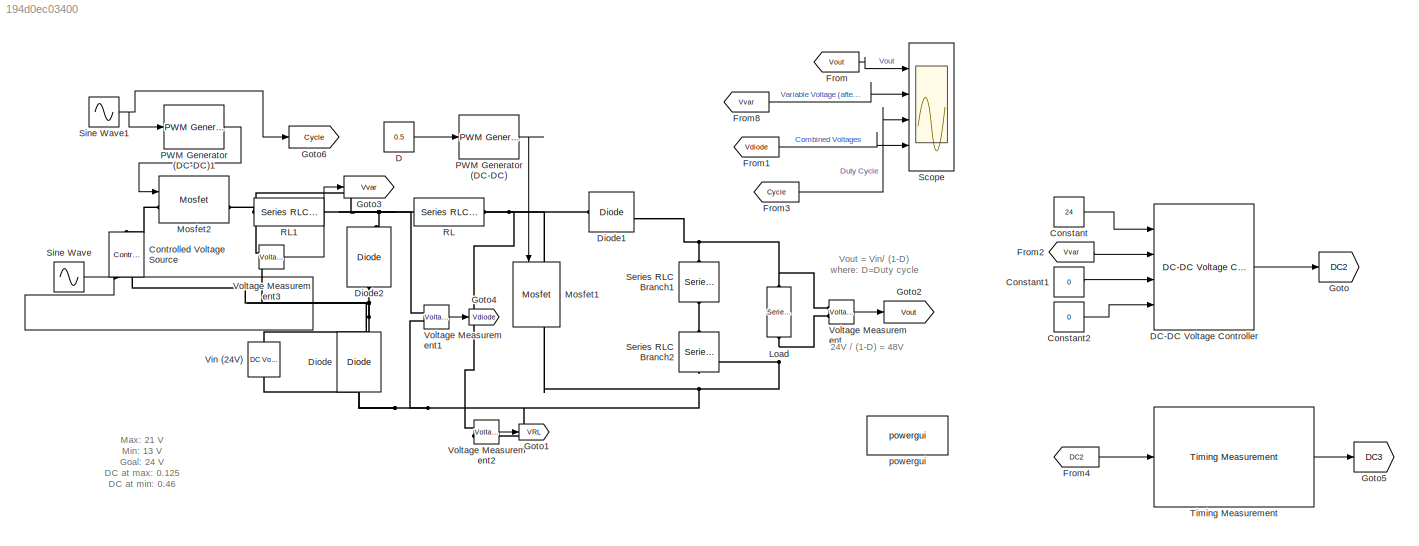
MODEL slx_194d0ec03400
KIND model
CONFIG AbsTol = auto
CONFIG EnableMultiTasking = on
CONFIG FixedStep = auto
CONFIG MaxStep = 1e-4
CONFIG MinStep = auto
CONFIG RelTol = 1e-4
CONFIG SampleTimeConstraint = Unconstrained
CONFIG SolverName = VariableStepAuto
CONFIG StartTime = 0.0
CONFIG StopTime = 0.05
BLOCK [Constant] Constant
  Value = 24
BLOCK [Constant] Constant1
  Value = 0
BLOCK [Constant] Constant2
  Value = 0
BLOCK [Reference] Controlled Voltage Source  REF=spsControlledVoltageSourceLib/Controlled Voltage Source
  Ports = [1, 0, 0, 0, 0, 1, 1]
  SourceBlock = spsControlledVoltageSourceLib/Controlled Voltage Source
  SourceProductBaseCode = PS
  SourceType = Controlled Voltage Source
BLOCK [Constant] D
  NameLocation = top
  Value = 0.5
BLOCK [Reference] DC-DC Voltage Controller  REF=eeDcDcVoltageController/DC-DC Voltage Controller
  Ports = [4, 1]
  SourceBlock = eeDcDcVoltageController/DC-DC Voltage Controller
  SourceProductBaseCode = PS
  SourceType = DC-DC Voltage Controller
BLOCK [Reference] Diode  REF=spsDiodeLib/Diode
  NameLocation = right
  Ports = [0, 1, 0, 0, 0, 1, 1]
  SourceBlock = spsDiodeLib/Diode
  SourceProductBaseCode = PS
  SourceType = Diode
BLOCK [Reference] Diode1  REF=spsDiodeLib/Diode
  Ports = [0, 1, 0, 0, 0, 1, 1]
  SourceBlock = spsDiodeLib/Diode
  SourceProductBaseCode = PS
  SourceType = Diode
BLOCK [Reference] Diode2  REF=spsDiodeLib/Diode
  NameLocation = right
  Ports = [0, 1, 0, 0, 0, 1, 1]
  SourceBlock = spsDiodeLib/Diode
  SourceProductBaseCode = PS
  SourceType = Diode
BLOCK [From] From
  GotoTag = Vout
BLOCK [From] From1
  GotoTag = Vdiode
BLOCK [From] From2
  GotoTag = Vvar
BLOCK [From] From3
  GotoTag = Cycle
BLOCK [From] From4
  GotoTag = DC2
BLOCK [From] From8
  GotoTag = Vvar
BLOCK [Goto] Goto
  GotoTag = DC2
BLOCK [Goto] Goto1
  GotoTag = VRL
BLOCK [Goto] Goto2
  GotoTag = Vout
BLOCK [Goto] Goto3
  GotoTag = Vvar
BLOCK [Goto] Goto4
  GotoTag = Vdiode
BLOCK [Goto] Goto5
  GotoTag = DC3
BLOCK [Goto] Goto6
  GotoTag = Cycle
BLOCK [Reference] Load  REF=spsSeriesRLCBranchLib/Series RLC Branch
  NameLocation = left
  Ports = [0, 0, 0, 0, 0, 1, 1]
  SourceBlock = spsSeriesRLCBranchLib/Series RLC Branch
  SourceProductBaseCode = PS
  SourceType = Series RLC Branch
BLOCK [Reference] Mosfet1  REF=spsMosfetLib/Mosfet
  NameLocation = left
  Ports = [1, 1, 0, 0, 0, 1, 1]
  SourceBlock = spsMosfetLib/Mosfet
  SourceProductBaseCode = PS
  SourceType = Mosfet
BLOCK [Reference] Mosfet2  REF=spsMosfetLib/Mosfet
  Ports = [1, 1, 0, 0, 0, 1, 1]
  SourceBlock = spsMosfetLib/Mosfet
  SourceProductBaseCode = PS
  SourceType = Mosfet
BLOCK [Reference] PWM Generator (DC-DC)  REF=spsPWMGeneratorDCDCLib/PWM Generator
(DC-DC)
  NameLocation = top
  Ports = [1, 1]
  SourceBlock = spsPWMGeneratorDCDCLib/PWM Generator\n(DC-DC)
  SourceProductBaseCode = PS
  SourceType = PWM Generator (DC-DC)
BLOCK [Reference] PWM Generator (DC-DC)1  REF=spsPWMGeneratorDCDCLib/PWM Generator
(DC-DC)
  NameLocation = top
  Ports = [1, 1]
  SourceBlock = spsPWMGeneratorDCDCLib/PWM Generator\n(DC-DC)
  SourceProductBaseCode = PS
  SourceType = PWM Generator (DC-DC)
BLOCK [Reference] RL  REF=spsSeriesRLCBranchLib/Series RLC Branch
  Ports = [0, 0, 0, 0, 0, 1, 1]
  SourceBlock = spsSeriesRLCBranchLib/Series RLC Branch
  SourceProductBaseCode = PS
  SourceType = Series RLC Branch
BLOCK [Reference] RL1  REF=spsSeriesRLCBranchLib/Series RLC Branch
  Ports = [0, 0, 0, 0, 0, 1, 1]
  SourceBlock = spsSeriesRLCBranchLib/Series RLC Branch
  SourceProductBaseCode = PS
  SourceType = Series RLC Branch
BLOCK [Scope] Scope
  Floating = off
  NumInputPorts = 4
  Ports = [4]
  ScopeSpecificationString = Simulink.scopes.TimeScopeBlockCfg('CurrentConfiguration', extmgr.ConfigurationSet(extmgr.Configuration('Core','General UI',true),extmgr.Configuration('Core','Source UI',true),extmgr.Configuration('Sources','WiredSimulink',true),extmgr.Configuration('Visuals','Time Domain',true,'SerializedDisplays',{struct('MinYLimReal','-7.55053','MaxYLimReal','67.9548','YLabelReal','','MinYLimMag','0.00000','MaxY...<+3490ch>
BLOCK [Reference] Series RLC Branch1  REF=spsSeriesRLCBranchLib/Series RLC Branch
  NameLocation = left
  Ports = [0, 0, 0, 0, 0, 1, 1]
  SourceBlock = spsSeriesRLCBranchLib/Series RLC Branch
  SourceProductBaseCode = PS
  SourceType = Series RLC Branch
BLOCK [Reference] Series RLC Branch2  REF=spsSeriesRLCBranchLib/Series RLC Branch
  NameLocation = left
  Ports = [0, 0, 0, 0, 0, 1, 1]
  SourceBlock = spsSeriesRLCBranchLib/Series RLC Branch
  SourceProductBaseCode = PS
  SourceType = Series RLC Branch
BLOCK [Sin] Sine Wave
  Amplitude = 4
  Bias = 17
  Frequency = 1000
  Ports = [0, 1]
  SampleTime = 0
BLOCK [Sin] Sine Wave1
  Amplitude = 0.1
  Bias = 0.2925
  Frequency = 1000
  Phase = 3
  Ports = [0, 1]
  SampleTime = 0
BLOCK [Reference] Timing Measurement  REF=msbUtilities/Timing Measurement
  Ports = [1, 1]
  SourceBlock = msbUtilities/Timing Measurement
  SourceProductBaseCode = AM
  SourceType = TimingMeasurement
BLOCK [Reference] Vin (24V)  REF=spsDCVoltageSourceLib/DC Voltage Source
  NameLocation = left
  Ports = [0, 0, 0, 0, 0, 1, 1]
  SourceBlock = spsDCVoltageSourceLib/DC Voltage Source
  SourceProductBaseCode = PS
  SourceType = DC Voltage Source
BLOCK [Reference] Voltage Measurement  REF=spsVoltageMeasurementLib/Voltage Measurement
  Ports = [0, 1, 0, 0, 0, 2]
  SourceBlock = spsVoltageMeasurementLib/Voltage Measurement
  SourceProductBaseCode = PS
  SourceType = Voltage Measurement
  UserDataPersistent = on
BLOCK [Reference] Voltage Measurement1  REF=spsVoltageMeasurementLib/Voltage Measurement
  Ports = [0, 1, 0, 0, 0, 2]
  SourceBlock = spsVoltageMeasurementLib/Voltage Measurement
  SourceProductBaseCode = PS
  SourceType = Voltage Measurement
  UserDataPersistent = on
BLOCK [Reference] Voltage Measurement2  REF=spsVoltageMeasurementLib/Voltage Measurement
  Ports = [0, 1, 0, 0, 0, 2]
  SourceBlock = spsVoltageMeasurementLib/Voltage Measurement
  SourceProductBaseCode = PS
  SourceType = Voltage Measurement
  UserDataPersistent = on
BLOCK [Reference] Voltage Measurement3  REF=spsVoltageMeasurementLib/Voltage Measurement
  Ports = [0, 1, 0, 0, 0, 2]
  SourceBlock = spsVoltageMeasurementLib/Voltage Measurement
  SourceProductBaseCode = PS
  SourceType = Voltage Measurement
  UserDataPersistent = on
BLOCK [Reference] powergui  REF=spspowerguiLib/powergui
  Ports = []
  Priority = 1
  SourceBlock = spspowerguiLib/powergui
  SourceProductBaseCode = PS
  SourceType = PSB option menu block
ANNOTATION (root): 24V / (1-D) = 48V
ANNOTATION (root): Max: 21 V Min: 13 V Goal: 24 V DC at max: 0.125 DC at min: 0.46
ANNOTATION (root): Vout = Vin/ (1-D) where: D=Duty cycle
LINE Constant1:1 -> DC-DC Voltage Controller:3
LINE Constant2:1 -> DC-DC Voltage Controller:4
LINE Constant:1 -> DC-DC Voltage Controller:1
LINE D:1 -> PWM Generator (DC-DC):1
LINE DC-DC Voltage Controller:1 -> Goto:1
LINE From1:1 -> Scope:4
LINE From2:1 -> DC-DC Voltage Controller:2
LINE From3:1 -> Scope:3
LINE From4:1 -> Timing Measurement:1
LINE From8:1 -> Scope:2
LINE From:1 -> Scope:1
LINE PWM Generator (DC-DC)1:1 -> Mosfet2:1
LINE PWM Generator (DC-DC):1 -> Mosfet1:1
NET Sine Wave1:1 -> Goto6:1, PWM Generator (DC-DC)1:1
LINE Sine Wave:1 -> Controlled Voltage Source:1
LINE Timing Measurement:1 -> Goto5:1
LINE Voltage Measurement1:1 -> Goto4:1
LINE Voltage Measurement2:1 -> Goto1:1
LINE Voltage Measurement3:1 -> Goto3:1
LINE Voltage Measurement:1 -> Goto2:1
PNET net1: Controlled Voltage Source:LConn1 -- Diode2:LConn1 -- Diode:RConn1 -- Vin (24V):RConn1 -- Voltage Measurement3:LConn2
PLINE Controlled Voltage Source:RConn1 -- Mosfet2:LConn1
PNET net2: Diode1:LConn1 -- Mosfet1:LConn1 -- RL:RConn1 -- Voltage Measurement2:LConn1
PNET net3: Diode1:RConn1 -- Load:LConn1 -- Series RLC Branch1:LConn1 -- Voltage Measurement:LConn1
PNET net4: Diode2:RConn1 -- RL1:RConn1 -- RL:LConn1 -- Voltage Measurement1:LConn1 -- Voltage Measurement3:LConn1
PNET net5: Diode:LConn1 -- Load:RConn1 -- Mosfet1:RConn1 -- Series RLC Branch2:RConn1 -- Vin (24V):LConn1 -- Voltage Measurement1:LConn2 -- Voltage Measurement2:LConn2 -- Voltage Measurement:LConn2
PLINE Mosfet2:RConn1 -- RL1:LConn1
PLINE Series RLC Branch1:RConn1 -- Series RLC Branch2:LConn1
note: NET lines group one-source signal fan-out (src -> all destinations, sorted); 1:1 wires keep LINE; PNET lines group multi-terminal physical nets as a canonical sorted terminal list (undirected conserving connections); 2-terminal nets keep the pairwise PLINE form
